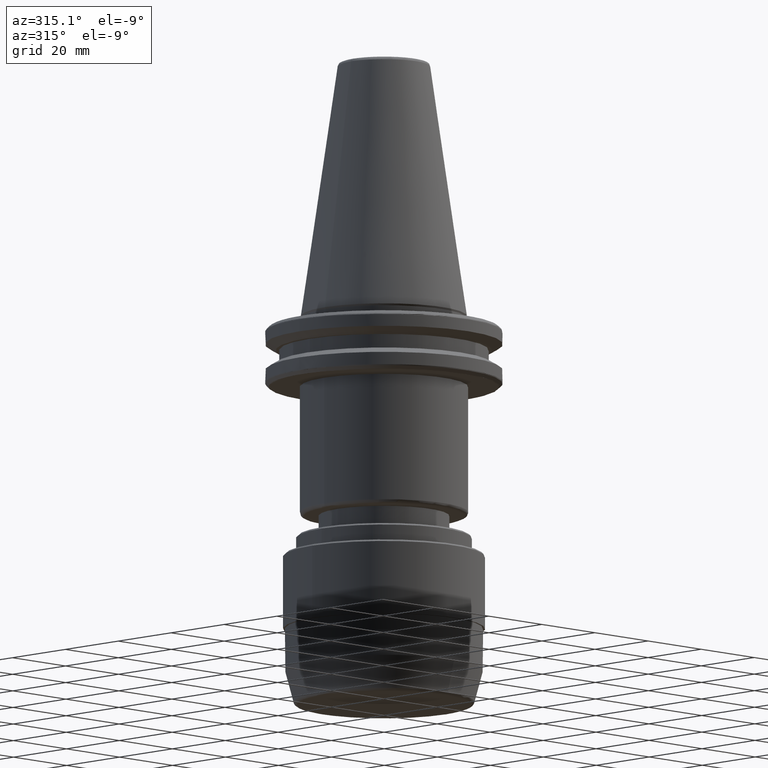
[diagram: clean part render]
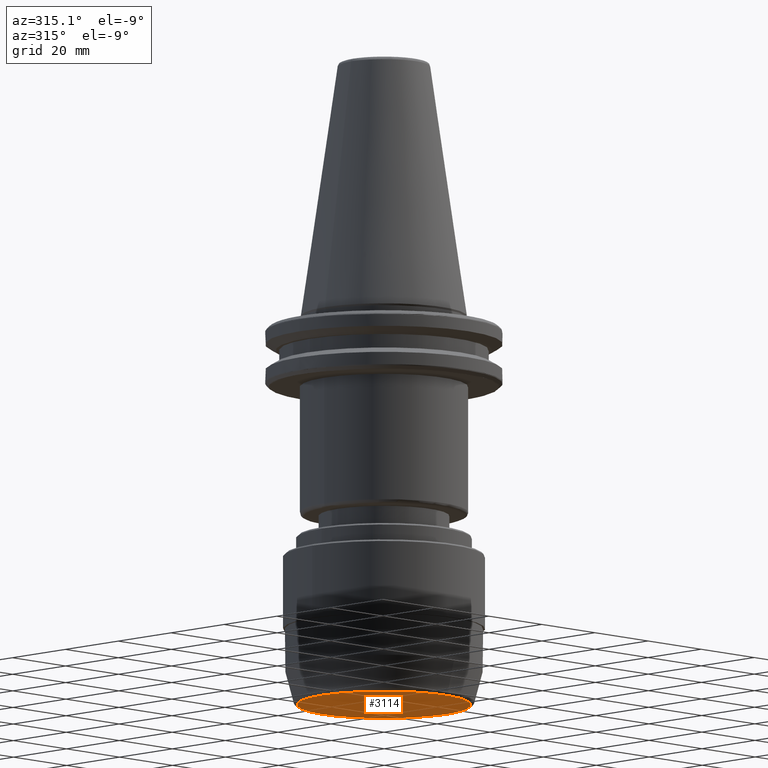
[diagram: same view with one face highlighted and labeled with its STEP entity id]
A machine part, auxiliary view. The second image highlights one B-rep face of the part: STEP entity #3114.
In plain terms, the highlighted planar face has unit normal (0, 0, 1).
Its self-contained STEP definition (entity closure, byte-faithful):
#176 = CARTESIAN_POINT ( 'NONE',  ( 23.23267301202103100, 0.0000000000000000000, -105.0000000000000100 ) ) ;
#210 = CARTESIAN_POINT ( 'NONE',  ( 23.23267301202103100, 0.0000000000000000000, -105.0000000000000100 ) ) ;
#646 = EDGE_CURVE ( 'NONE', #2534, #2258, #2563, .T. ) ;
#686 = CARTESIAN_POINT ( 'NONE',  ( -23.23267301202103900, -46.46534602404205600, -105.0000000000000300 ) ) ;
#839 =( BOUNDED_CURVE ( )  B_SPLINE_CURVE ( 3, ( #1483, #686, #1786, #210 ),
 .UNSPECIFIED., .F., .F. ) 
 B_SPLINE_CURVE_WITH_KNOTS ( ( 4, 4 ),
 ( 0.0000000000000000000, 1.000000000000000000 ),
 .UNSPECIFIED. ) 
 CURVE ( )  GEOMETRIC_REPRESENTATION_ITEM ( )  RATIONAL_B_SPLINE_CURVE ( ( 1.000000000000000000, 0.3333333333333333700, 0.3333333333333333700, 1.000000000000000000 ) ) 
 REPRESENTATION_ITEM ( '' )  );
#883 = AXIS2_PLACEMENT_3D ( 'NONE', #2758, #1506, #3268 ) ;
#959 = CARTESIAN_POINT ( 'NONE',  ( -23.23267301202102400, 46.46534602404205600, -105.0000000000000300 ) ) ;
#1322 = FACE_OUTER_BOUND ( 'NONE', #2330, .T. ) ;
#1483 = CARTESIAN_POINT ( 'NONE',  ( -23.23267301202103100, 3.094887899169964600E-015, -105.0000000000000100 ) ) ;
#1506 = DIRECTION ( 'NONE',  ( 0.0000000000000000000, 0.0000000000000000000, 1.000000000000000000 ) ) ;
#1634 = ORIENTED_EDGE ( 'NONE', *, *, #646, .F. ) ;
#1786 = CARTESIAN_POINT ( 'NONE',  ( 23.23267301202103100, -46.46534602404205600, -105.0000000000000300 ) ) ;
#2008 = CARTESIAN_POINT ( 'NONE',  ( -23.23267301202103100, 3.094887899169964600E-015, -105.0000000000000100 ) ) ;
#2030 = CARTESIAN_POINT ( 'NONE',  ( 23.23267301202103100, 0.0000000000000000000, -105.0000000000000100 ) ) ;
#2052 = CARTESIAN_POINT ( 'NONE',  ( -23.23267301202103100, 3.094887899169964600E-015, -105.0000000000000100 ) ) ;
#2213 = EDGE_CURVE ( 'NONE', #2258, #2534, #839, .T. ) ;
#2258 = VERTEX_POINT ( 'NONE', #2052 ) ;
#2330 = EDGE_LOOP ( 'NONE', ( #2493, #1634 ) ) ;
#2493 = ORIENTED_EDGE ( 'NONE', *, *, #2213, .F. ) ;
#2518 = PLANE ( 'NONE',  #883 ) ;
#2534 = VERTEX_POINT ( 'NONE', #2030 ) ;
#2563 =( BOUNDED_CURVE ( )  B_SPLINE_CURVE ( 3, ( #176, #2986, #959, #2008 ),
 .UNSPECIFIED., .F., .F. ) 
 B_SPLINE_CURVE_WITH_KNOTS ( ( 4, 4 ),
 ( 0.0000000000000000000, 1.000000000000000000 ),
 .UNSPECIFIED. ) 
 CURVE ( )  GEOMETRIC_REPRESENTATION_ITEM ( )  RATIONAL_B_SPLINE_CURVE ( ( 1.000000000000000000, 0.3333333333333333700, 0.3333333333333333700, 1.000000000000000000 ) ) 
 REPRESENTATION_ITEM ( '' )  );
#2758 = CARTESIAN_POINT ( 'NONE',  ( 0.0000000000000000000, 23.23267301202103100, -105.0000000000000000 ) ) ;
#2986 = CARTESIAN_POINT ( 'NONE',  ( 23.23267301202103100, 46.46534602404205600, -105.0000000000000300 ) ) ;
#3114 = ADVANCED_FACE ( 'NONE', ( #1322 ), #2518, .F. ) ;
#3268 = DIRECTION ( 'NONE',  ( 1.000000000000000000, 0.0000000000000000000, -0.0000000000000000000 ) ) ;